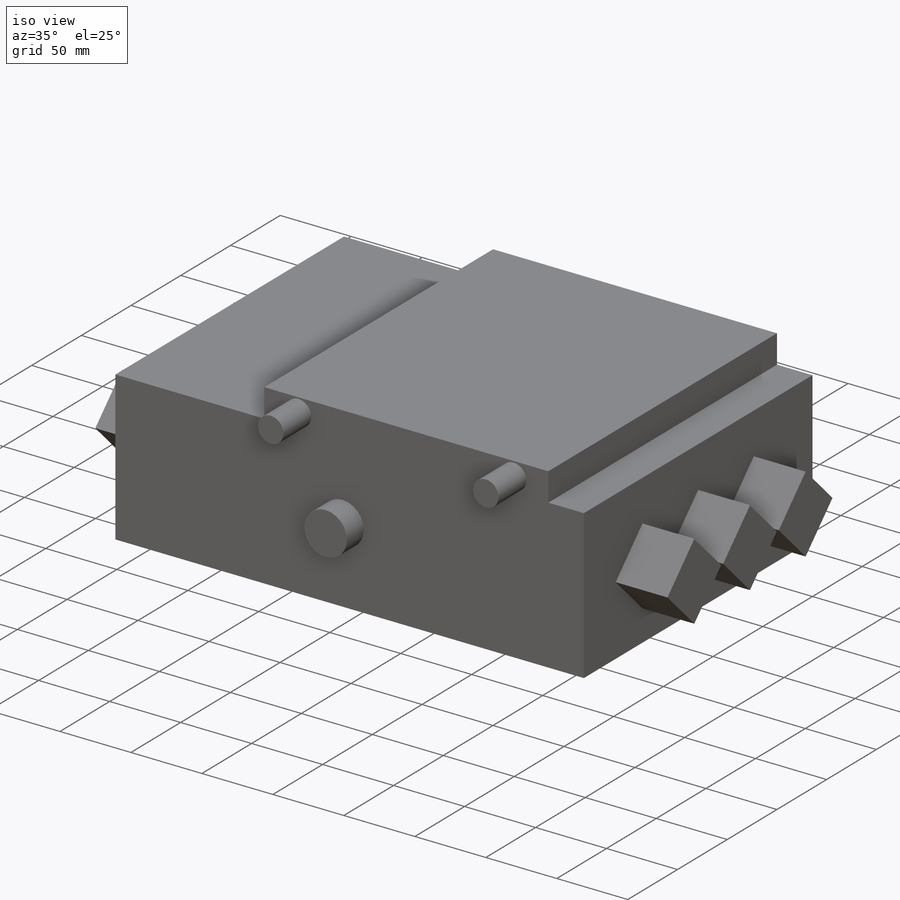
[diagram: iso view]
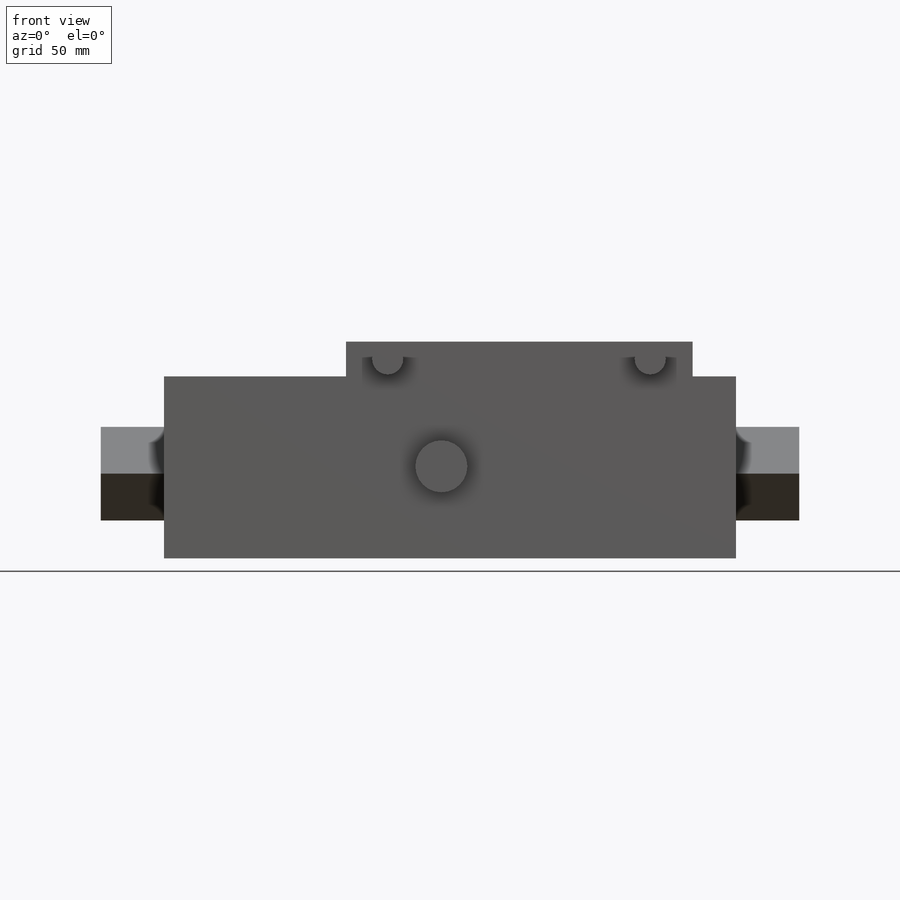
[diagram: front view]
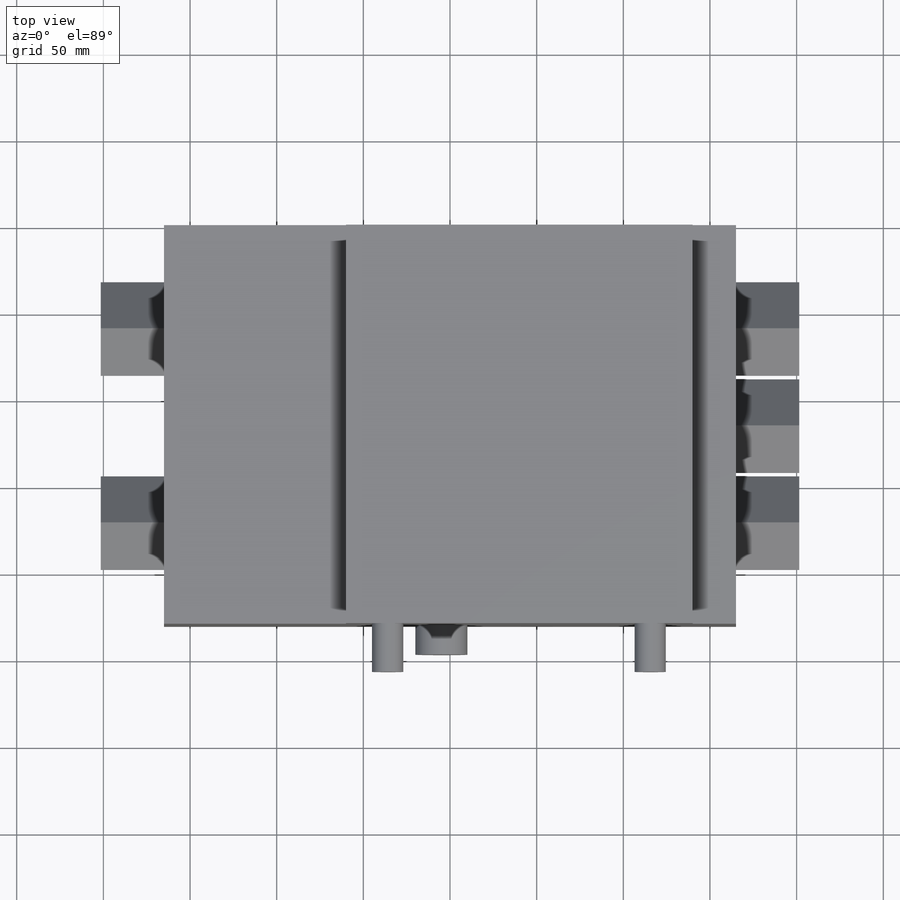
[diagram: top view]
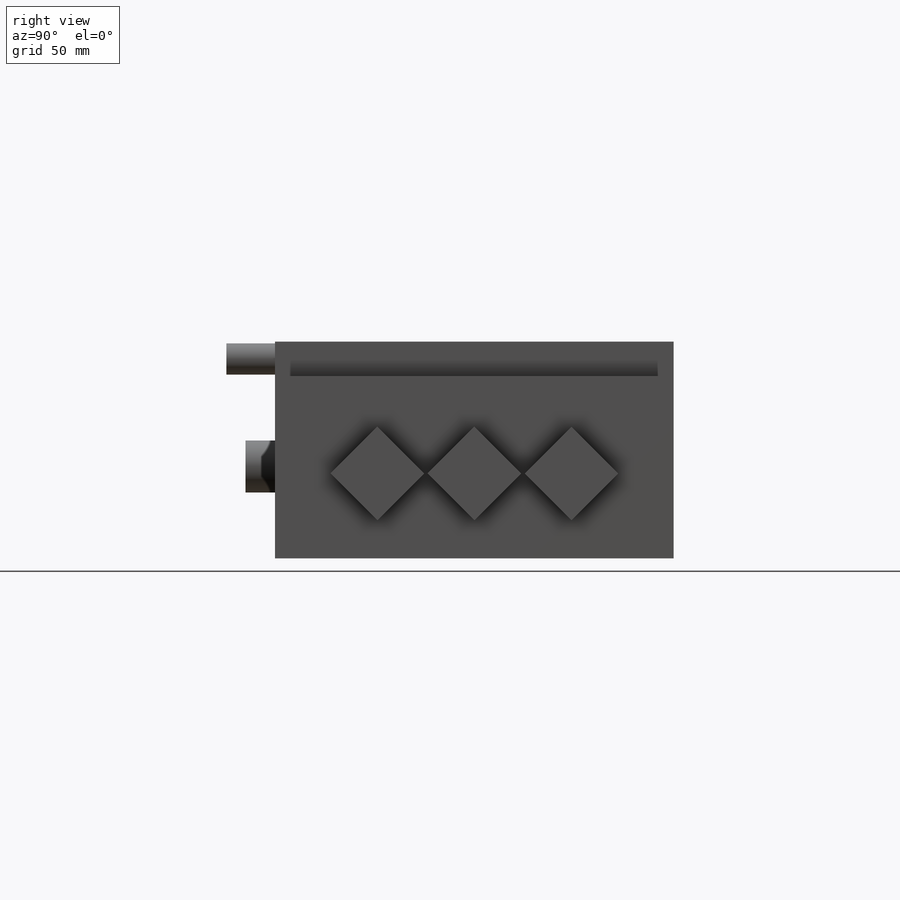
[diagram: right view]
SOLIDWORKS PART (.sldprt)
format: sldprt  version: not decoded by parser v0  size: 227,840 bytes
history: native  units: mm
features: sketch x6, extrude x5, material x1, mirror x1, plane x1 (+13 scaffold rows collapsed)
feature tree (27):
  scaffold x13  (default folders/planes/origin — collapsed)
  material  "Material <not specified>"
  sketch  "Sketch1"  dims[D1=330.0mm D2=105.0mm]
  extrude  "Boss-Extrude1"  Depth=230mm
  sketch  "Sketch2"  dims[D1=200.0mm D2=25.0mm]
  extrude  "Boss-Extrude2"  Depth=20mm
  sketch  "Sketch5"  dims[c1.D1=18.0mm c1.D2=18.0mm c1.D6=30.0mm c1.D3=10.0mm c1.D4=~19.851176mm c1.D5=~173.107556mm c2.D4=49.5mm c2.D5=201.0mm c2.D7=170.0mm c2.D8=52.0mm]
  extrude  "Boss-Extrude4"  Depth=28mm
  extrude  "Boss-Extrude5"  [1 undecoded]
  sketch  "Sketch5<5>"  dims[D1=17.0mm]
  sketch  "Sketch6"  dims[c1.D1=59.0mm c1.D2=~57.169393mm c1.D3=~45.985246mm c2.D3=45.0deg c2.D4=38.2mm c2.D5=38.2mm c2.D6=~53.280627mm c2.D7=59.0mm c3.D6=3.0]
  extrude  "Boss-Extrude6"  Depth=36.5mm
  mirror  "Mirror1"
  sketch  "Sketch7"
  plane  "Mid plane"
decode coverage: 9 of 12 modeling features carry decoded parameters
note: ~ marks probable driven/reference dimensions
note: 1 parameter value undecoded
note: suppression state not decoded; provenance and decode notes live in map.json
